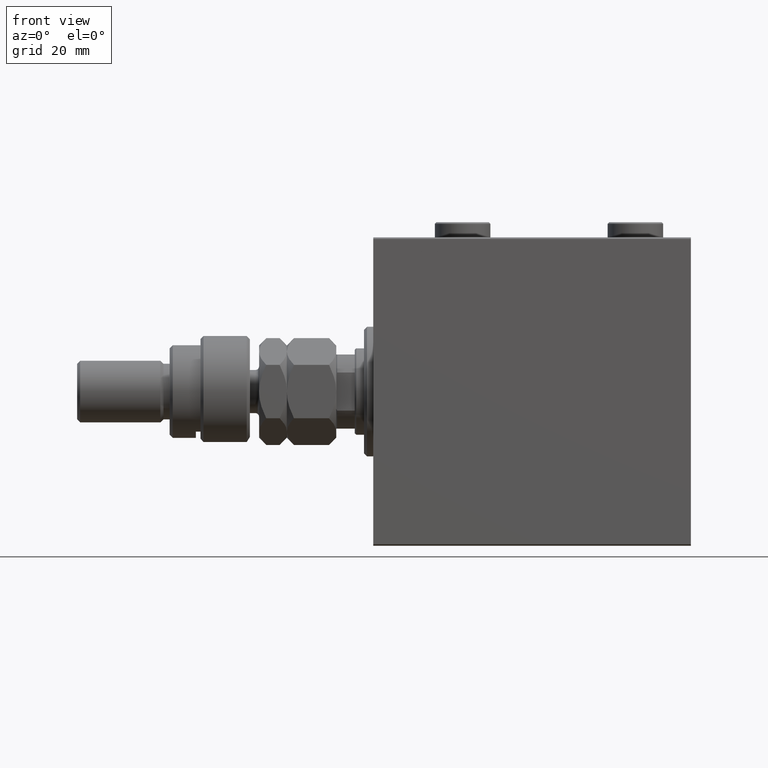
[diagram: clean part render]
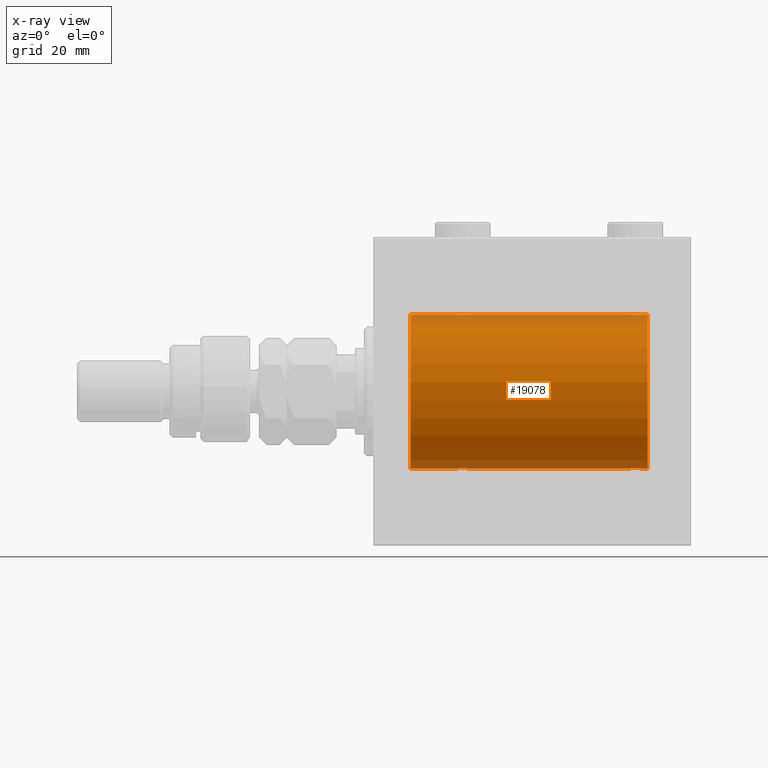
[diagram: x-ray — body ghosted, one internal face saturated and labeled with its STEP entity id]
A machine part, front view, then the same camera in x-ray: the body is ghosted and one INTERNAL B-rep face — a face not visible from any outside direction — is saturated and labeled: STEP entity #19078.
In plain terms, the highlighted cylindrical surface (partial cylindrical patch) has radius 25 mm, axis along (-1, -0, -0).
Its self-contained STEP definition (entity closure, byte-faithful):
#25 = VECTOR ( 'NONE', #38902, 1000.000000000000000 ) ;
#418 = CARTESIAN_POINT ( 'NONE',  ( 85.32947680114266120, -2.483544361357270969, -24.87635491893501793 ) ) ;
#904 = CARTESIAN_POINT ( 'NONE',  ( 30.25084023924055288, -2.170728182476724832, 24.90574631553725027 ) ) ;
#1022 = CARTESIAN_POINT ( 'NONE',  ( 82.50000000000001421, -0.1631750940176218967, 25.00000000000000355 ) ) ;
#1140 = CARTESIAN_POINT ( 'NONE',  ( 26.57985090779070347, -0.6480119923854233965, 24.99212088949390775 ) ) ;
#1223 = VECTOR ( 'NONE', #26979, 1000.000000000000000 ) ;
#1260 = CARTESIAN_POINT ( 'NONE',  ( 87.50000000000004263, -0.3305063766663757785, 25.00000000000000711 ) ) ;
#1321 = CARTESIAN_POINT ( 'NONE',  ( 89.00000000000000000, 0.000000000000000000, 25.00000000000000000 ) ) ;
#1390 = CARTESIAN_POINT ( 'NONE',  ( 31.49999999999998579, -0.3305063766663716707, 25.00000000000000000 ) ) ;
#1643 = CARTESIAN_POINT ( 'NONE',  ( 26.51582159942343253, -0.3254210271412228961, 24.99840249400844527 ) ) ;
#1759 = CARTESIAN_POINT ( 'NONE',  ( 83.01250184165601809, -1.525407911884365530, 24.95379469572362297 ) ) ;
#2382 = EDGE_CURVE ( 'NONE', #41540, #36513, #7169, .T. ) ;
#2548 = CARTESIAN_POINT ( 'NONE',  ( 31.48417840057656747, -0.3254210271412200650, -24.99840249400844527 ) ) ;
#2688 = EDGE_CURVE ( 'NONE', #28516, #29745, #27673, .T. ) ;
#2700 = EDGE_CURVE ( 'NONE', #36803, #21051, #45708, .T. ) ;
#2783 = CARTESIAN_POINT ( 'NONE',  ( 31.50000000000000000, -0.1631750940176180942, -25.00000000000001066 ) ) ;
#2796 = CARTESIAN_POINT ( 'NONE',  ( 26.50000000000000355, -4.113702575029848227E-15, -25.00000000000000000 ) ) ;
#2809 = VECTOR ( 'NONE', #47937, 1000.000000000000000 ) ;
#3007 = VERTEX_POINT ( 'NONE', #27952 ) ;
#3018 = CARTESIAN_POINT ( 'NONE',  ( 29.32947680114268252, -2.483544361357266084, -24.87635491893501083 ) ) ;
#3025 = CARTESIAN_POINT ( 'NONE',  ( 11.99999999999999645, 0.000000000000000000, 25.00000000000000000 ) ) ;
#3105 = ORIENTED_EDGE ( 'NONE', *, *, #15936, .F. ) ;
#3230 = CIRCLE ( 'NONE', #31492, 25.00000000000000000 ) ;
#3261 = CARTESIAN_POINT ( 'NONE',  ( 31.17011290280925451, -1.252049606094333578, -24.96900299967627745 ) ) ;
#4112 = CARTESIAN_POINT ( 'NONE',  ( 86.98749815834396770, -1.525407911884361090, -24.95379469572362297 ) ) ;
#4133 = DIRECTION ( 'NONE',  ( -1.000000000000000000, -0.000000000000000000, -0.000000000000000000 ) ) ;
#4350 = CARTESIAN_POINT ( 'NONE',  ( 84.19564339083697746, -2.372734907014179218, -24.88722742718433878 ) ) ;
#4566 = EDGE_CURVE ( 'NONE', #6473, #29745, #35456, .T. ) ;
#4591 = CARTESIAN_POINT ( 'NONE',  ( 28.19211657594194875, -2.371528299825753638, 24.88734287464371420 ) ) ;
#4609 = CARTESIAN_POINT ( 'NONE',  ( 87.50000000000000000, 2.755618163048309144E-15, 25.00000000000000000 ) ) ;
#4839 = CARTESIAN_POINT ( 'NONE',  ( 26.82988709719076326, -1.252049606094339795, 24.96900299967627745 ) ) ;
#4957 = CARTESIAN_POINT ( 'NONE',  ( 87.16827641493955525, -1.255214705003178555, 24.96884293994578030 ) ) ;
#5012 = DIRECTION ( 'NONE',  ( -1.000000000000000000, -0.000000000000000000, -0.000000000000000000 ) ) ;
#5201 = CARTESIAN_POINT ( 'NONE',  ( 84.35095609830904095, -2.419770561643911133, 24.88263927071751169 ) ) ;
#5329 = CARTESIAN_POINT ( 'NONE',  ( 28.67052319885731038, -2.483544361357275854, 24.87635491893501793 ) ) ;
#5580 = CARTESIAN_POINT ( 'NONE',  ( 31.16827641493956591, -1.255214705003186770, 24.96884293994577320 ) ) ;
#5694 = CARTESIAN_POINT ( 'NONE',  ( 83.74616804575497042, -2.169003991399877762, 24.90589728951138682 ) ) ;
#5991 = CARTESIAN_POINT ( 'NONE',  ( 31.42014909220930363, -0.6480119923854200659, -24.99212088949392196 ) ) ;
#6473 = VERTEX_POINT ( 'NONE', #30361 ) ;
#6653 = CARTESIAN_POINT ( 'NONE',  ( 11.99999999999999645, 0.000000000000000000, 0.000000000000000000 ) ) ;
#6709 = CARTESIAN_POINT ( 'NONE',  ( 27.47743225659810307, -1.989585286700244149, -24.92087098724765681 ) ) ;
#6953 = CARTESIAN_POINT ( 'NONE',  ( 26.83172358506043054, -1.255214705003178555, -24.96884293994578030 ) ) ;
#7080 = CARTESIAN_POINT ( 'NONE',  ( 87.48417840057655326, -0.3254210271412191768, -24.99840249400844172 ) ) ;
#7169 = B_SPLINE_CURVE_WITH_KNOTS ( 'NONE', 3,
 ( #17747, #2783, #2548, #5991, #28794, #43789, #3261, #14067, #40589, #10404, #20956, #10629, #35938, #21439, #47940, #3018, #13826, #36426, #39875, #17518, #21666, #14536, #36183, #6709, #21904, #47697, #44491, #6953, #21195, #13594, #36657, #17984 ),
 .UNSPECIFIED., .F., .F.,
 ( 4, 2, 2, 2, 2, 2, 2, 2, 2, 2, 2, 2, 2, 2, 2, 4 ),
 ( 0.007821024441662299820, 0.008309723826317907958, 0.008798423210973517830, 0.009287122595629122498, 0.009775821980284727167, 0.01026452136494033184, 0.01075322074959593650, 0.01124192013425154291, 0.01173061951890714757, 0.01221931890356275051, 0.01270801828821835691, 0.01319671767287396158, 0.01368541705752956625, 0.01417411644218517092, 0.01466281582684077732, 0.01564021459615199186 ),
 .UNSPECIFIED. ) ;
#7327 = CARTESIAN_POINT ( 'NONE',  ( 87.50000000000000000, 3.061616978466896943E-15, -25.00000000000000000 ) ) ;
#7496 = CARTESIAN_POINT ( 'NONE',  ( 89.00000000000000000, 0.000000000000000000, 0.000000000000000000 ) ) ;
#7557 = CARTESIAN_POINT ( 'NONE',  ( 87.42014909220927166, -0.6480119923854191777, -24.99212088949390420 ) ) ;
#8059 = CARTESIAN_POINT ( 'NONE',  ( 86.65383336149335491, -1.881857718844716310, -24.92933960374833902 ) ) ;
#8594 = CARTESIAN_POINT ( 'NONE',  ( 89.00000000000000000, 3.061616997868383043E-15, -25.00000000000000000 ) ) ;
#8654 = CARTESIAN_POINT ( 'NONE',  ( 83.88963203491134379, -2.245863995402903601, 24.89899750494197050 ) ) ;
#8898 = CARTESIAN_POINT ( 'NONE',  ( 83.11587617213530166, -1.651251241585109275, 24.94567559498348785 ) ) ;
#9378 = CARTESIAN_POINT ( 'NONE',  ( 82.82988709719072062, -1.252049606094335799, 24.96900299967626680 ) ) ;
#9629 = DIRECTION ( 'NONE',  ( -1.000000000000000000, 0.000000000000000000, 0.000000000000000000 ) ) ;
#9915 = LINE ( 'NONE', #40118, #2809 ) ;
#10404 = CARTESIAN_POINT ( 'NONE',  ( 30.65383336149337978, -1.881857718844712091, -24.92933960374833546 ) ) ;
#10629 = CARTESIAN_POINT ( 'NONE',  ( 30.25383195424502958, -2.169003991399867104, -24.90589728951138326 ) ) ;
#10750 = CARTESIAN_POINT ( 'NONE',  ( 87.24760251019550594, -1.106703319666879182, -24.97594585958024282 ) ) ;
#10993 = CARTESIAN_POINT ( 'NONE',  ( 82.50000000000000000, -0.3305063766663863256, -25.00000000000000355 ) ) ;
#11235 = CARTESIAN_POINT ( 'NONE',  ( 87.50000000000001421, -0.1631750940176178721, -25.00000000000000711 ) ) ;
#12311 = CARTESIAN_POINT ( 'NONE',  ( 86.10723845838408863, -2.247417070759898383, 24.89885693081947338 ) ) ;
#12688 = CARTESIAN_POINT ( 'NONE',  ( 30.52256774340189693, -1.989585286700248590, 24.92087098724766392 ) ) ;
#12802 = CARTESIAN_POINT ( 'NONE',  ( 86.98538033717096596, -1.528152964861309915, 24.95362559291379156 ) ) ;
#13043 = CARTESIAN_POINT ( 'NONE',  ( 84.19211657594195231, -2.371528299825750974, 24.88734287464371420 ) ) ;
#13591 = ORIENTED_EDGE ( 'NONE', *, *, #39904, .F. ) ;
#13594 = CARTESIAN_POINT ( 'NONE',  ( 26.56650644760252789, -0.6588655613945878509, -24.99312727339970763 ) ) ;
#13761 = DIRECTION ( 'NONE',  ( 0.000000000000000000, 0.000000000000000000, 1.000000000000000000 ) ) ;
#13826 = CARTESIAN_POINT ( 'NONE',  ( 29.16706495178060621, -2.499872792855077464, -24.87469871246082320 ) ) ;
#14067 = CARTESIAN_POINT ( 'NONE',  ( 30.98749815834398902, -1.525407911884361312, -24.95379469572362652 ) ) ;
#14428 = CARTESIAN_POINT ( 'NONE',  ( 83.74915976075946844, -2.170728182476727053, -24.90574631553725027 ) ) ;
#14536 = CARTESIAN_POINT ( 'NONE',  ( 27.89276154161591137, -2.247417070759893498, -24.89885693081945917 ) ) ;
#14660 = CARTESIAN_POINT ( 'NONE',  ( 85.64904390169098747, -2.419770561643910245, -24.88263927071751525 ) ) ;
#14903 = CARTESIAN_POINT ( 'NONE',  ( 84.35439333851367394, -2.420689345803758386, -24.88254961038873958 ) ) ;
#15153 = CARTESIAN_POINT ( 'NONE',  ( 86.52536182243080987, -1.987446652080258724, -24.92104239223420592 ) ) ;
#15658 = CYLINDRICAL_SURFACE ( 'NONE', #47906, 25.00000000000000000 ) ;
#15716 = EDGE_CURVE ( 'NONE', #3007, #29973, #36739, .T. ) ;
#15841 = ORIENTED_EDGE ( 'NONE', *, *, #4566, .F. ) ;
#15879 = CARTESIAN_POINT ( 'NONE',  ( 31.43349355239747567, -0.6588655613945897382, 24.99312727339969697 ) ) ;
#15936 = EDGE_CURVE ( 'NONE', #36803, #6473, #3230, .T. ) ;
#15995 = CARTESIAN_POINT ( 'NONE',  ( 82.75239748980446564, -1.106703319666889396, 24.97594585958023572 ) ) ;
#16615 = CARTESIAN_POINT ( 'NONE',  ( 27.34616663850662377, -1.881857718844722527, 24.92933960374833902 ) ) ;
#16728 = CARTESIAN_POINT ( 'NONE',  ( 89.00000000000000000, 3.061616997868383043E-15, -25.00000000000000000 ) ) ;
#17518 = CARTESIAN_POINT ( 'NONE',  ( 28.35439333851368460, -2.420689345803756165, -24.88254961038873958 ) ) ;
#17747 = CARTESIAN_POINT ( 'NONE',  ( 31.50000000000000000, 3.061616978460191625E-15, -25.00000000000000000 ) ) ;
#17984 = CARTESIAN_POINT ( 'NONE',  ( 26.50000000000000355, -4.113702575029848227E-15, -25.00000000000000000 ) ) ;
#18122 = CARTESIAN_POINT ( 'NONE',  ( 89.00000000000000000, 3.061616997868383043E-15, -25.00000000000000000 ) ) ;
#18306 = CARTESIAN_POINT ( 'NONE',  ( 31.50000000000000000, -2.684100552846272733E-15, 25.00000000000000000 ) ) ;
#18463 = ORIENTED_EDGE ( 'NONE', *, *, #42559, .T. ) ;
#18834 = CARTESIAN_POINT ( 'NONE',  ( 84.67403429960538119, -2.484007091859763428, -24.87630842367763151 ) ) ;
#19078 = ADVANCED_FACE ( 'NONE', ( #33341 ), #15658, .F. ) ;
#19079 = CARTESIAN_POINT ( 'NONE',  ( 85.80788342405806191, -2.371528299825749198, -24.88734287464371420 ) ) ;
#19097 = DIRECTION ( 'NONE',  ( 0.000000000000000000, 0.000000000000000000, 1.000000000000000000 ) ) ;
#19318 = CARTESIAN_POINT ( 'NONE',  ( 87.17011290280923674, -1.252049606094332690, -24.96900299967627035 ) ) ;
#19513 = EDGE_CURVE ( 'NONE', #39177, #41540, #42806, .T. ) ;
#19674 = CARTESIAN_POINT ( 'NONE',  ( 84.67052319885729617, -2.483544361357273189, 24.87635491893502149 ) ) ;
#19918 = CARTESIAN_POINT ( 'NONE',  ( 87.24606379094066710, -1.109818057797411273, 24.97580694515542277 ) ) ;
#20035 = CARTESIAN_POINT ( 'NONE',  ( 30.10723845838410284, -2.247417070759901936, 24.89885693081946272 ) ) ;
#20234 = LINE ( 'NONE', #46750, #25 ) ;
#20288 = CARTESIAN_POINT ( 'NONE',  ( 30.65121133559112820, -1.884161199660621344, 24.92916496727982434 ) ) ;
#20541 = CARTESIAN_POINT ( 'NONE',  ( 27.74616804575497042, -2.169003991399875098, 24.90589728951138326 ) ) ;
#20652 = CARTESIAN_POINT ( 'NONE',  ( 85.32596570039463302, -2.484007091859765204, 24.87630842367763861 ) ) ;
#20956 = CARTESIAN_POINT ( 'NONE',  ( 30.52536182243081342, -1.987446652080259391, -24.92104239223420592 ) ) ;
#21051 = VERTEX_POINT ( 'NONE', #34753 ) ;
#21195 = CARTESIAN_POINT ( 'NONE',  ( 26.75393620905933290, -1.109818057797416158, -24.97580694515542277 ) ) ;
#21345 = CARTESIAN_POINT ( 'NONE',  ( 11.99999999999999645, 3.061616997868383043E-15, -25.00000000000000000 ) ) ;
#21439 = CARTESIAN_POINT ( 'NONE',  ( 29.80788342405805835, -2.371528299825741648, -24.88734287464370709 ) ) ;
#21666 = CARTESIAN_POINT ( 'NONE',  ( 28.19564339083698457, -2.372734907014171224, -24.88722742718433523 ) ) ;
#21904 = CARTESIAN_POINT ( 'NONE',  ( 27.34878866440888245, -1.884161199660614017, -24.92916496727982434 ) ) ;
#22024 = ORIENTED_EDGE ( 'NONE', *, *, #2700, .T. ) ;
#22039 = CARTESIAN_POINT ( 'NONE',  ( 85.16706495178058844, -2.499872792855082793, -24.87469871246081965 ) ) ;
#22515 = CARTESIAN_POINT ( 'NONE',  ( 83.89276154161588295, -2.247417070759902380, -24.89885693081945917 ) ) ;
#23484 = CARTESIAN_POINT ( 'NONE',  ( 30.88185954148645962, -1.653834020452942255, 24.94550385189584674 ) ) ;
#23605 = CARTESIAN_POINT ( 'NONE',  ( 85.64560666148635448, -2.420689345803758830, 24.88254961038874313 ) ) ;
#23737 = CARTESIAN_POINT ( 'NONE',  ( 29.80435660916301543, -2.372734907014179662, 24.88722742718433167 ) ) ;
#23857 = DIRECTION ( 'NONE',  ( -1.000000000000000000, -0.000000000000000000, -0.000000000000000000 ) ) ;
#23890 = CARTESIAN_POINT ( 'NONE',  ( 89.00000000000000000, 3.061616997868383043E-15, -25.00000000000000000 ) ) ;
#23977 = CARTESIAN_POINT ( 'NONE',  ( 31.50000000000000000, -2.684100552846272733E-15, 25.00000000000000000 ) ) ;
#24135 = DIRECTION ( 'NONE',  ( -1.000000000000000000, -0.000000000000000000, -0.000000000000000000 ) ) ;
#24227 = CARTESIAN_POINT ( 'NONE',  ( 29.16323589638543368, -2.500125740978201616, 24.87467329022545215 ) ) ;
#24340 = CARTESIAN_POINT ( 'NONE',  ( 83.34616663850660245, -1.881857718844724303, 24.92933960374833902 ) ) ;
#25033 = ORIENTED_EDGE ( 'NONE', *, *, #45359, .T. ) ;
#25271 = EDGE_CURVE ( 'NONE', #36513, #34613, #30906, .T. ) ;
#25718 = CARTESIAN_POINT ( 'NONE',  ( 82.83172358506043054, -1.255214705003186548, -24.96884293994577675 ) ) ;
#26383 = VECTOR ( 'NONE', #5012, 1000.000000000000000 ) ;
#26438 = CARTESIAN_POINT ( 'NONE',  ( 83.01461966282906246, -1.528152964861315022, -24.95362559291378091 ) ) ;
#26911 = EDGE_LOOP ( 'NONE', ( #3105, #22024, #18463, #31541, #45798, #39538, #25033, #13591, #45014, #43160, #28411, #15841 ) ) ;
#26979 = DIRECTION ( 'NONE',  ( -1.000000000000000000, -0.000000000000000000, -0.000000000000000000 ) ) ;
#27274 = CARTESIAN_POINT ( 'NONE',  ( 86.52256774340190759, -1.989585286700245925, 24.92087098724765681 ) ) ;
#27657 = CARTESIAN_POINT ( 'NONE',  ( 29.64560666148632606, -2.420689345803765935, 24.88254961038873958 ) ) ;
#27673 = B_SPLINE_CURVE_WITH_KNOTS ( 'NONE', 3,
 ( #46675, #1022, #38341, #39325, #43014, #15995, #9378, #1759, #8898, #24340, #30963, #5694, #8654, #13043, #5201, #19674, #42529, #46443, #20652, #23605, #45941, #12311, #31706, #27274, #38591, #35388, #12802, #4957, #19918, #34894, #1260, #35636 ),
 .UNSPECIFIED., .F., .F.,
 ( 4, 2, 2, 2, 2, 2, 2, 2, 2, 2, 2, 2, 2, 2, 2, 4 ),
 ( 0.007821024441662285942, 0.008309723826317894080, 0.008798423210973503952, 0.009287122595629112090, 0.009775821980284721963, 0.01026452136494033010, 0.01075322074959593997, 0.01124192013425154811, 0.01173061951890715798, 0.01221931890356276612, 0.01270801828821837426, 0.01319671767287398240, 0.01368541705752959400, 0.01417411644218520214, 0.01466281582684081028, 0.01564021459615201268 ),
 .UNSPECIFIED. ) ;
#27815 = EDGE_CURVE ( 'NONE', #28516, #29973, #9915, .T. ) ;
#27952 = CARTESIAN_POINT ( 'NONE',  ( 26.50000000000000355, -1.940558383798427991E-23, 25.00000000000000000 ) ) ;
#28411 = ORIENTED_EDGE ( 'NONE', *, *, #2688, .T. ) ;
#28516 = VERTEX_POINT ( 'NONE', #28671 ) ;
#28671 = CARTESIAN_POINT ( 'NONE',  ( 82.49999999999998579, -1.940203396391078535E-23, 25.00000000000000000 ) ) ;
#28794 = CARTESIAN_POINT ( 'NONE',  ( 31.37215969408607563, -0.8058335233485418581, -24.98746277938382931 ) ) ;
#29391 = CARTESIAN_POINT ( 'NONE',  ( 83.34878866440891443, -1.884161199660624897, -24.92916496727982789 ) ) ;
#29745 = VERTEX_POINT ( 'NONE', #4609 ) ;
#29973 = VERTEX_POINT ( 'NONE', #18306 ) ;
#30121 = CARTESIAN_POINT ( 'NONE',  ( 86.88412382786469834, -1.651251241585100837, -24.94567559498349141 ) ) ;
#30361 = CARTESIAN_POINT ( 'NONE',  ( 89.00000000000000000, 0.000000000000000000, 25.00000000000000000 ) ) ;
#30846 = CARTESIAN_POINT ( 'NONE',  ( 26.62784030591392792, -0.8058335233485494076, 24.98746277938382576 ) ) ;
#30906 = LINE ( 'NONE', #8594, #1223 ) ;
#30963 = CARTESIAN_POINT ( 'NONE',  ( 83.47463817756923277, -1.987446652080270271, 24.92104239223421303 ) ) ;
#31092 = CARTESIAN_POINT ( 'NONE',  ( 27.47463817756919013, -1.987446652080266496, 24.92104239223420592 ) ) ;
#31348 = CARTESIAN_POINT ( 'NONE',  ( 31.24606379094066355, -1.109818057797419710, 24.97580694515541921 ) ) ;
#31492 = AXIS2_PLACEMENT_3D ( 'NONE', #7496, #37439, #37199 ) ;
#31541 = ORIENTED_EDGE ( 'NONE', *, *, #19513, .T. ) ;
#31706 = CARTESIAN_POINT ( 'NONE',  ( 86.25084023924053156, -2.170728182476720836, 24.90574631553725027 ) ) ;
#31833 = CARTESIAN_POINT ( 'NONE',  ( 27.88963203491136156, -2.245863995402906266, 24.89899750494197050 ) ) ;
#32412 = VERTEX_POINT ( 'NONE', #3025 ) ;
#33320 = CARTESIAN_POINT ( 'NONE',  ( 86.11036796508859936, -2.245863995402901825, -24.89899750494196695 ) ) ;
#33341 = FACE_OUTER_BOUND ( 'NONE', #26911, .T. ) ;
#33490 = B_SPLINE_CURVE_WITH_KNOTS ( 'NONE', 3,
 ( #7327, #11235, #7080, #7557, #41680, #10750, #19318, #4112, #30121, #8059, #15153, #37987, #33320, #19079, #14660, #418, #22039, #34050, #18834, #14903, #4350, #22515, #14428, #37497, #29391, #44615, #26438, #25718, #40713, #41435, #10993, #37024 ),
 .UNSPECIFIED., .F., .F.,
 ( 4, 2, 2, 2, 2, 2, 2, 2, 2, 2, 2, 2, 2, 2, 2, 4 ),
 ( 0.007821024441662289411, 0.008309723826317894080, 0.008798423210973500483, 0.009287122595629105151, 0.009775821980284711554, 0.01026452136494031622, 0.01075322074959592263, 0.01124192013425152903, 0.01173061951890713370, 0.01221931890356273837, 0.01270801828821834303, 0.01319671767287394944, 0.01368541705752955411, 0.01417411644218516051, 0.01466281582684076518, 0.01564021459615199186 ),
 .UNSPECIFIED. ) ;
#34050 = CARTESIAN_POINT ( 'NONE',  ( 84.83676410361455567, -2.500125740978195843, -24.87467329022544860 ) ) ;
#34536 = CARTESIAN_POINT ( 'NONE',  ( 26.50000000000000711, -0.1631750940176210085, 25.00000000000000355 ) ) ;
#34613 = VERTEX_POINT ( 'NONE', #21345 ) ;
#34753 = CARTESIAN_POINT ( 'NONE',  ( 87.50000000000000000, 3.061616978466896943E-15, -25.00000000000000000 ) ) ;
#34778 = CARTESIAN_POINT ( 'NONE',  ( 26.50000000000000355, -1.940558383798427991E-23, 25.00000000000000000 ) ) ;
#34894 = CARTESIAN_POINT ( 'NONE',  ( 87.43349355239749343, -0.6588655613945809675, 24.99312727339970053 ) ) ;
#35022 = CARTESIAN_POINT ( 'NONE',  ( 30.98538033717095175, -1.528152964861317464, 24.95362559291379156 ) ) ;
#35388 = CARTESIAN_POINT ( 'NONE',  ( 86.88185954148649159, -1.653834020452933817, 24.94550385189585029 ) ) ;
#35456 = LINE ( 'NONE', #1321, #26383 ) ;
#35527 = CARTESIAN_POINT ( 'NONE',  ( 26.75239748980448695, -1.106703319666887175, 24.97594585958023572 ) ) ;
#35636 = CARTESIAN_POINT ( 'NONE',  ( 87.50000000000000000, 2.755618163048309144E-15, 25.00000000000000000 ) ) ;
#35938 = CARTESIAN_POINT ( 'NONE',  ( 30.11036796508864910, -2.245863995402895164, -24.89899750494197406 ) ) ;
#36183 = CARTESIAN_POINT ( 'NONE',  ( 27.74915976075945068, -2.170728182476717283, -24.90574631553725027 ) ) ;
#36426 = CARTESIAN_POINT ( 'NONE',  ( 28.83676410361457343, -2.500125740978191846, -24.87467329022545925 ) ) ;
#36513 = VERTEX_POINT ( 'NONE', #2796 ) ;
#36657 = CARTESIAN_POINT ( 'NONE',  ( 26.50000000000000000, -0.3305063766663763336, -25.00000000000000355 ) ) ;
#36739 = B_SPLINE_CURVE_WITH_KNOTS ( 'NONE', 3,
 ( #34778, #34536, #1643, #1140, #30846, #35527, #4839, #45823, #38958, #16615, #31092, #20541, #31833, #4591, #42900, #5329, #38711, #24227, #42152, #27657, #23737, #20035, #904, #12688, #20288, #23484, #35022, #5580, #31348, #15879, #1390, #23977 ),
 .UNSPECIFIED., .F., .F.,
 ( 4, 2, 2, 2, 2, 2, 2, 2, 2, 2, 2, 2, 2, 2, 2, 4 ),
 ( 0.007821024441662254717, 0.008309723826317859385, 0.008798423210973464054, 0.009287122595629070457, 0.009775821980284676860, 0.01026452136494028153, 0.01075322074959588620, 0.01124192013425149260, 0.01173061951890709900, 0.01221931890356270367, 0.01270801828821830834, 0.01319671767287391301, 0.01368541705752951768, 0.01417411644218512408, 0.01466281582684072701, 0.01564021459615193982 ),
 .UNSPECIFIED. ) ;
#36803 = VERTEX_POINT ( 'NONE', #18122 ) ;
#37024 = CARTESIAN_POINT ( 'NONE',  ( 82.49999999999998579, -1.011913705137797072E-14, -25.00000000000000000 ) ) ;
#37199 = DIRECTION ( 'NONE',  ( 0.000000000000000000, 0.000000000000000000, 1.000000000000000000 ) ) ;
#37439 = DIRECTION ( 'NONE',  ( -1.000000000000000000, 0.000000000000000000, 0.000000000000000000 ) ) ;
#37497 = CARTESIAN_POINT ( 'NONE',  ( 83.47743225659813504, -1.989585286700255473, -24.92087098724766747 ) ) ;
#37743 = VECTOR ( 'NONE', #24135, 1000.000000000000000 ) ;
#37987 = CARTESIAN_POINT ( 'NONE',  ( 86.25383195424502958, -2.169003991399867992, -24.90589728951137971 ) ) ;
#38341 = CARTESIAN_POINT ( 'NONE',  ( 82.51582159942343253, -0.3254210271412246169, 24.99840249400844883 ) ) ;
#38591 = CARTESIAN_POINT ( 'NONE',  ( 86.65121133559109978, -1.884161199660613351, 24.92916496727982434 ) ) ;
#38711 = CARTESIAN_POINT ( 'NONE',  ( 28.83293504821939379, -2.499872792855087678, 24.87469871246082320 ) ) ;
#38902 = DIRECTION ( 'NONE',  ( -1.000000000000000000, -0.000000000000000000, -0.000000000000000000 ) ) ;
#38958 = CARTESIAN_POINT ( 'NONE',  ( 27.11587617213529100, -1.651251241585107055, 24.94567559498349141 ) ) ;
#39177 = VERTEX_POINT ( 'NONE', #46122 ) ;
#39325 = CARTESIAN_POINT ( 'NONE',  ( 82.57985090779071413, -0.6480119923854255060, 24.99212088949390775 ) ) ;
#39538 = ORIENTED_EDGE ( 'NONE', *, *, #25271, .T. ) ;
#39875 = CARTESIAN_POINT ( 'NONE',  ( 28.67403429960540606, -2.484007091859761207, -24.87630842367763506 ) ) ;
#39904 = EDGE_CURVE ( 'NONE', #3007, #32412, #20234, .T. ) ;
#40118 = CARTESIAN_POINT ( 'NONE',  ( 89.00000000000000000, 0.000000000000000000, 25.00000000000000000 ) ) ;
#40589 = CARTESIAN_POINT ( 'NONE',  ( 30.88412382786470900, -1.651251241585097063, -24.94567559498348075 ) ) ;
#40713 = CARTESIAN_POINT ( 'NONE',  ( 82.75393620905931868, -1.109818057797422153, -24.97580694515541921 ) ) ;
#40863 = CIRCLE ( 'NONE', #47130, 25.00000000000000000 ) ;
#41435 = CARTESIAN_POINT ( 'NONE',  ( 82.56650644760252078, -0.6588655613945950673, -24.99312727339970053 ) ) ;
#41540 = VERTEX_POINT ( 'NONE', #47701 ) ;
#41680 = CARTESIAN_POINT ( 'NONE',  ( 87.37215969408605076, -0.8058335233485420801, -24.98746277938382931 ) ) ;
#42133 = VECTOR ( 'NONE', #23857, 1000.000000000000000 ) ;
#42152 = CARTESIAN_POINT ( 'NONE',  ( 29.32596570039460104, -2.484007091859770089, 24.87630842367763506 ) ) ;
#42529 = CARTESIAN_POINT ( 'NONE',  ( 84.83293504821942577, -2.499872792855085013, 24.87469871246082675 ) ) ;
#42559 = EDGE_CURVE ( 'NONE', #21051, #39177, #33490, .T. ) ;
#42806 = LINE ( 'NONE', #23890, #37743 ) ;
#42900 = CARTESIAN_POINT ( 'NONE',  ( 28.35095609830903385, -2.419770561643914686, 24.88263927071751169 ) ) ;
#43014 = CARTESIAN_POINT ( 'NONE',  ( 82.62784030591390660, -0.8058335233485520721, 24.98746277938383287 ) ) ;
#43160 = ORIENTED_EDGE ( 'NONE', *, *, #27815, .F. ) ;
#43789 = CARTESIAN_POINT ( 'NONE',  ( 31.24760251019550950, -1.106703319666878071, -24.97594585958023572 ) ) ;
#44491 = CARTESIAN_POINT ( 'NONE',  ( 27.01461966282905180, -1.528152964861308138, -24.95362559291378801 ) ) ;
#44615 = CARTESIAN_POINT ( 'NONE',  ( 83.11814045851355104, -1.653834020452946696, -24.94550385189584318 ) ) ;
#45014 = ORIENTED_EDGE ( 'NONE', *, *, #15716, .T. ) ;
#45359 = EDGE_CURVE ( 'NONE', #34613, #32412, #40863, .T. ) ;
#45708 = LINE ( 'NONE', #16728, #42133 ) ;
#45798 = ORIENTED_EDGE ( 'NONE', *, *, #2382, .T. ) ;
#45823 = CARTESIAN_POINT ( 'NONE',  ( 27.01250184165602164, -1.525407911884368417, 24.95379469572363007 ) ) ;
#45941 = CARTESIAN_POINT ( 'NONE',  ( 85.80435660916303675, -2.372734907014176553, 24.88722742718433523 ) ) ;
#46122 = CARTESIAN_POINT ( 'NONE',  ( 82.49999999999998579, -1.011913705137797072E-14, -25.00000000000000000 ) ) ;
#46443 = CARTESIAN_POINT ( 'NONE',  ( 85.16323589638543012, -2.500125740978196731, 24.87467329022545925 ) ) ;
#46675 = CARTESIAN_POINT ( 'NONE',  ( 82.49999999999998579, -1.940203396391078535E-23, 25.00000000000000000 ) ) ;
#46750 = CARTESIAN_POINT ( 'NONE',  ( 89.00000000000000000, 0.000000000000000000, 25.00000000000000000 ) ) ;
#47130 = AXIS2_PLACEMENT_3D ( 'NONE', #6653, #9629, #13761 ) ;
#47697 = CARTESIAN_POINT ( 'NONE',  ( 27.11814045851354038, -1.653834020452936038, -24.94550385189584674 ) ) ;
#47701 = CARTESIAN_POINT ( 'NONE',  ( 31.50000000000000000, 3.061616978460191625E-15, -25.00000000000000000 ) ) ;
#47906 = AXIS2_PLACEMENT_3D ( 'NONE', #48553, #4133, #19097 ) ;
#47937 = DIRECTION ( 'NONE',  ( -1.000000000000000000, -0.000000000000000000, -0.000000000000000000 ) ) ;
#47940 = CARTESIAN_POINT ( 'NONE',  ( 29.64904390169096970, -2.419770561643905804, -24.88263927071751169 ) ) ;
#48553 = CARTESIAN_POINT ( 'NONE',  ( 89.00000000000000000, 0.000000000000000000, 0.000000000000000000 ) ) ;